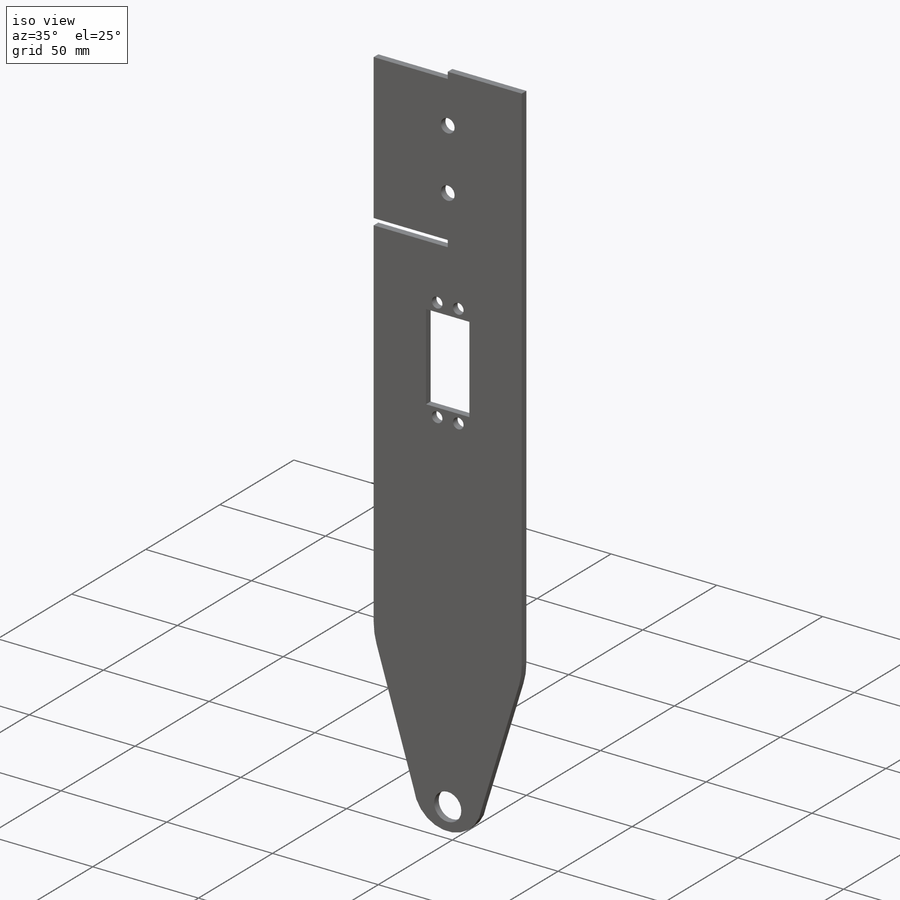
[diagram: iso view]
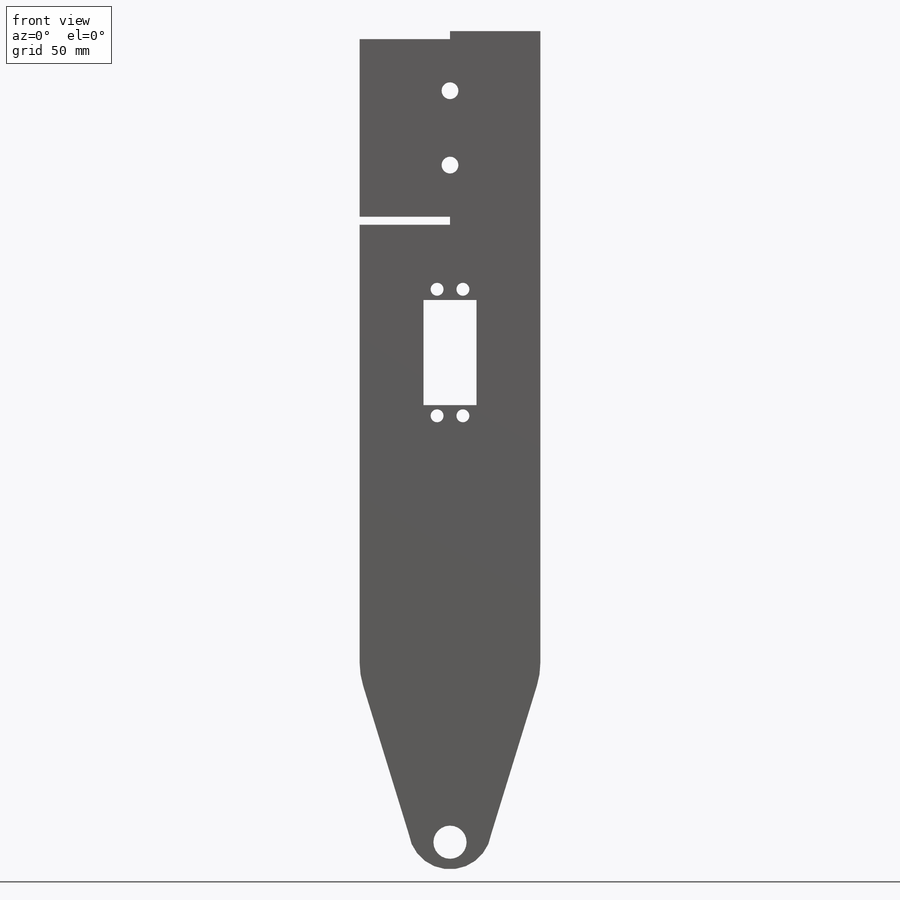
[diagram: front view]
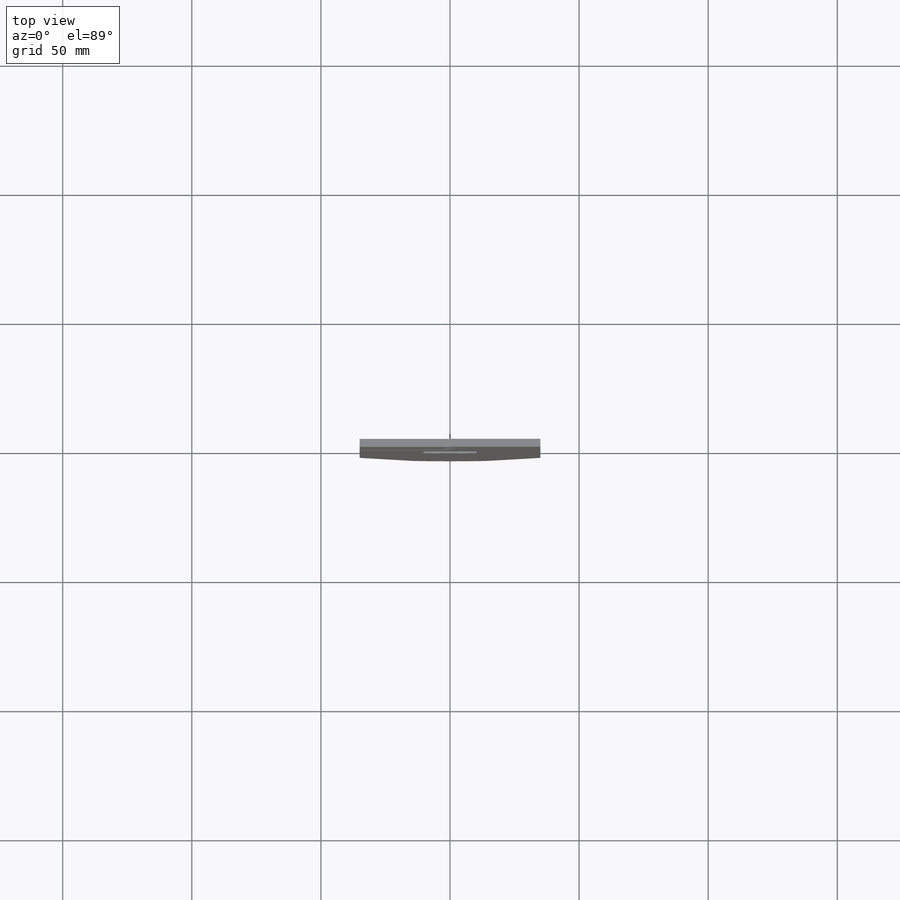
[diagram: top view]
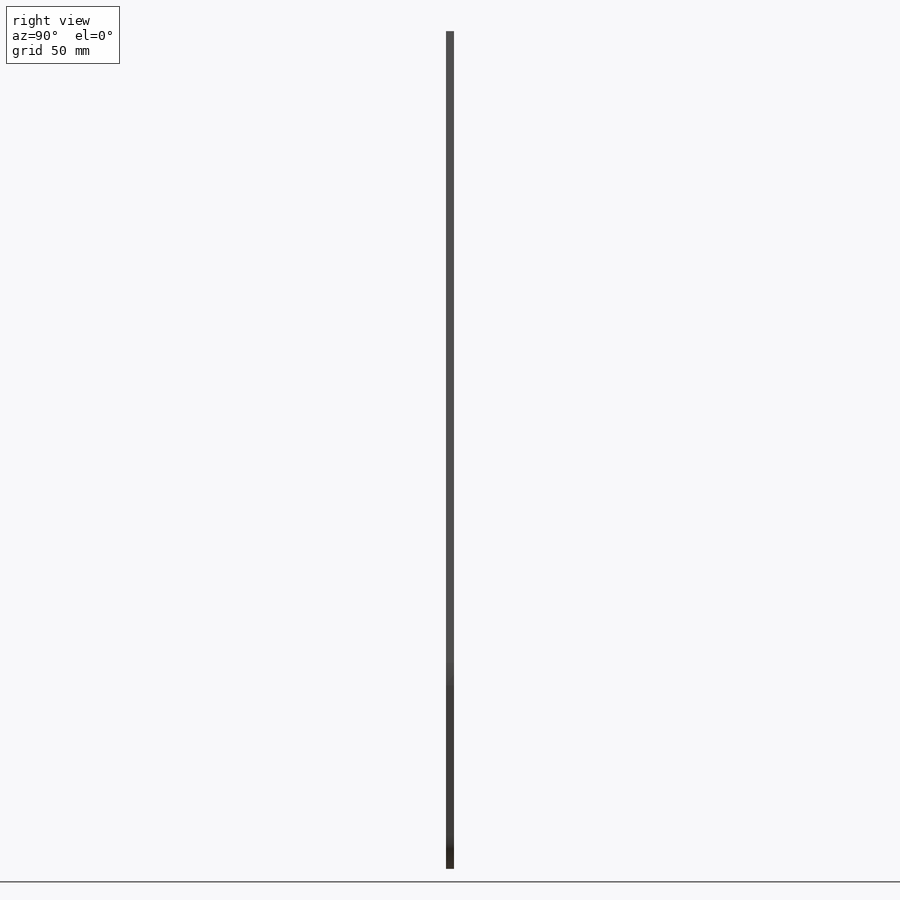
[diagram: right view]
SOLIDWORKS PART (.sldprt)
format: sldprt  version: not decoded by parser v0  size: 311,808 bytes
history: native  units: mm
features: sketch x3, cut_extrude x2, material x1, extrude x1, fillet x1 (+13 scaffold rows collapsed)
feature tree (21):
  scaffold x13  (default folders/planes/origin — collapsed)
  material  "Teak"
  sketch  "Sketch1"  dims[c1.D3=12.85mm c1.D12=5.0mm c1.D1=70.0mm c1.D2=300.0mm c1.D4=35.0mm c1.D5=40.7mm c1.D6=20.5mm c1.D7=10.0mm c1.D8=~14.320003mm c2.D7=250.0mm c2.D8=~250.202034mm c2.D9=~103.30688mm c3.D7=200.0mm c3.D8=10.0mm c3.D9=49.0mm c3.D10=10.0mm c3.D2=100.0mm c3.D11=349.15mm]
  extrude  "Boss-Extrude1"  Depth=3.1mm
  sketch  "Sketch2"  dims[c1.D1=32.0mm c1.D2=100.0mm c1.D3=~70.767576mm c2.D2=100.0mm]
  cut_extrude  "Cut-Extrude1"  [1 undecoded]
  fillet  "Fillet2"  Radius=30mm
  sketch  "Sketch4"  dims[D4=6.5mm D5=6.5mm D1=3.1mm D2=3.1mm D3=75.0mm D6=20.0mm D7=20.0mm]
  cut_extrude  "Cut-Extrude2"  [1 undecoded]
decode coverage: 5 of 7 modeling features carry decoded parameters
note: ~ marks probable driven/reference dimensions
note: 2 parameter values undecoded
note: suppression state not decoded; provenance and decode notes live in map.json
